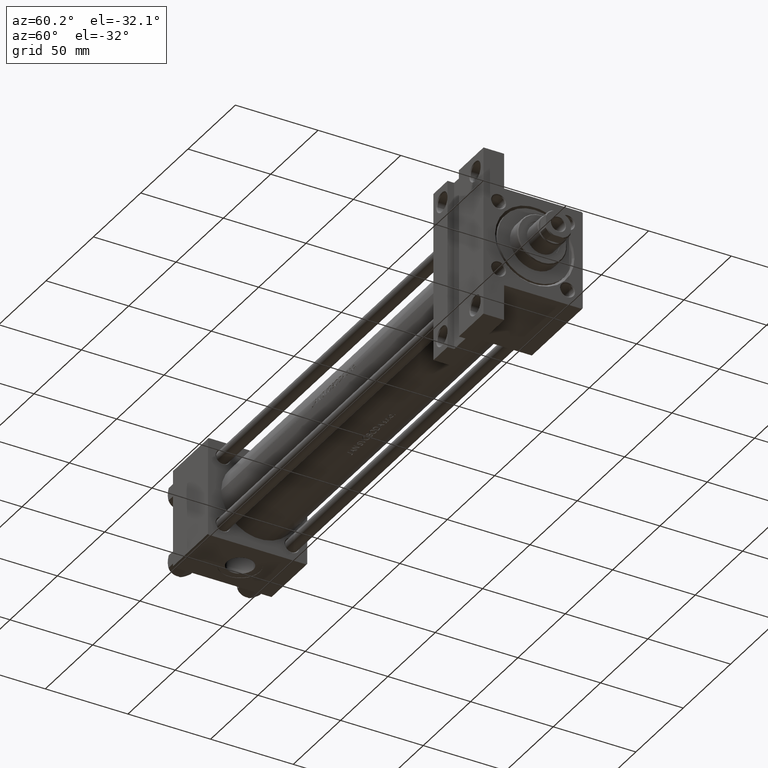
[diagram: clean part render]
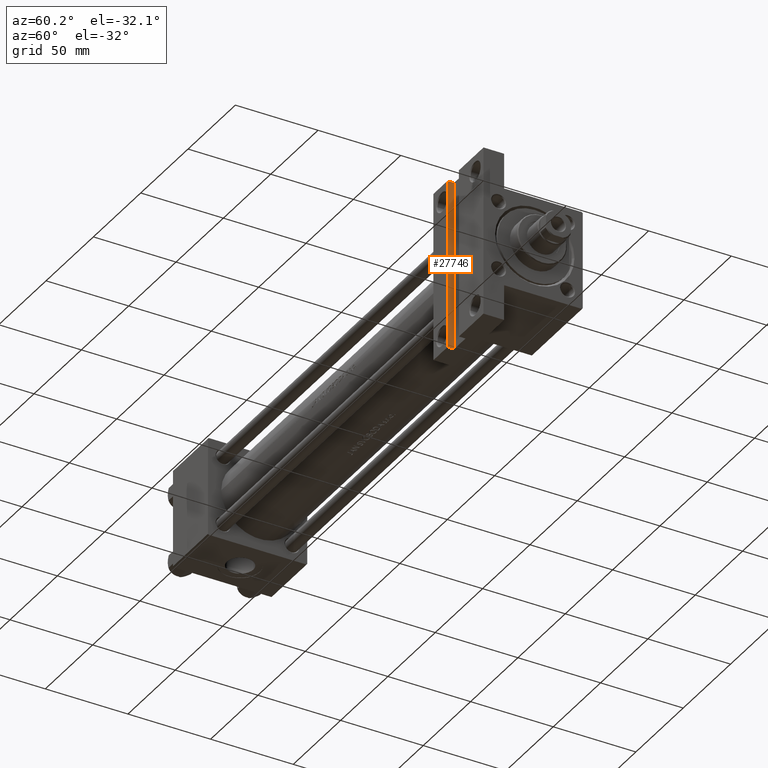
[diagram: same view with one face highlighted and labeled with its STEP entity id]
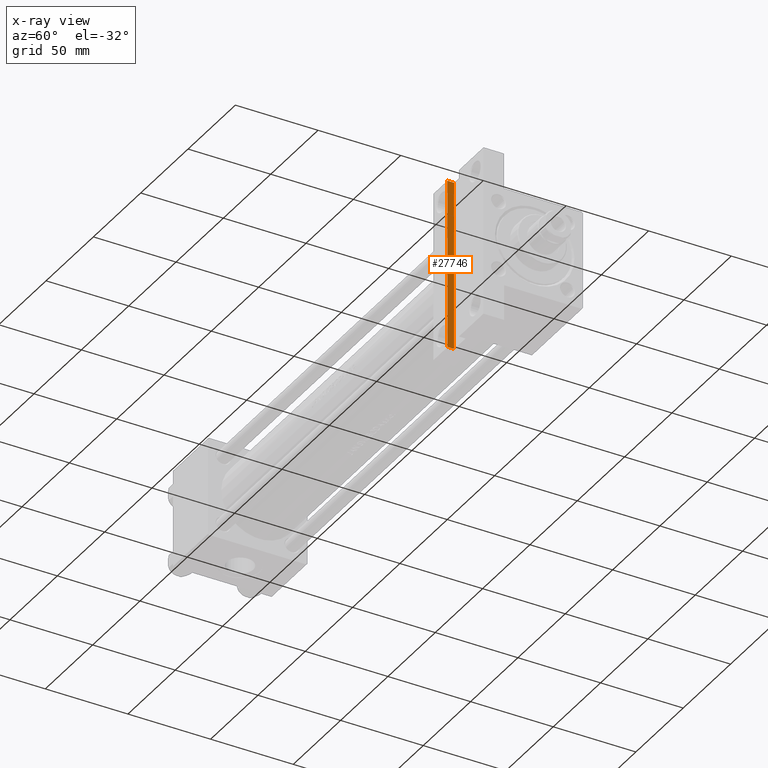
[diagram: x-ray of the same camera — body ghosted, the highlighted face saturated]
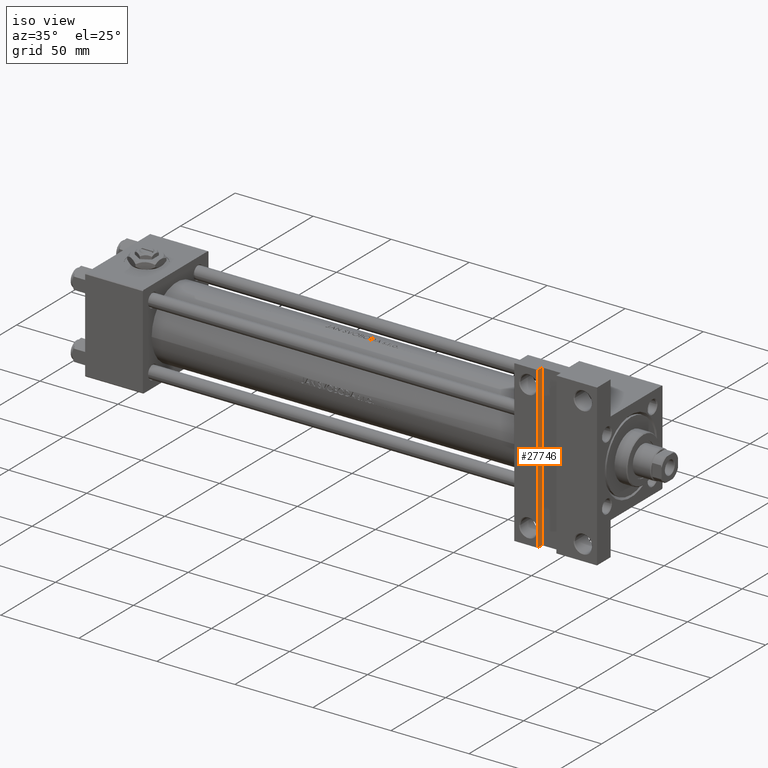
[diagram: same view with one face highlighted and labeled with its STEP entity id]
A machine part, auxiliary view. The second image highlights one B-rep face of the part: STEP entity #27746.
The next image is the same camera in x-ray: the body ghosted, the highlighted face saturated — about 0% of this face is hidden behind the body in this view.
A second angle (iso view) of the same face is appended — the face is thin or edge-on in the first view.
In plain terms, the highlighted planar face has unit normal (-1, 0, 0).
Its self-contained STEP definition (entity closure, byte-faithful):
#575 = CARTESIAN_POINT ( 'NONE',  ( 289.9999999999999432, -51.49999999999995026, -29.99999999999999645 ) ) ;
#1737 = VERTEX_POINT ( 'NONE', #7798 ) ;
#3261 = EDGE_CURVE ( 'NONE', #45920, #22459, #19750, .T. ) ;
#6131 = ORIENTED_EDGE ( 'NONE', *, *, #23345, .F. ) ;
#7798 = CARTESIAN_POINT ( 'NONE',  ( 289.9999999999999432, -51.49999999999995026, -25.99999999999999645 ) ) ;
#11271 = CARTESIAN_POINT ( 'NONE',  ( 289.9999999999999432, -51.49999999999995026, -25.99999999999999645 ) ) ;
#12279 = ORIENTED_EDGE ( 'NONE', *, *, #40052, .F. ) ;
#15781 = ORIENTED_EDGE ( 'NONE', *, *, #42125, .T. ) ;
#15880 = CARTESIAN_POINT ( 'NONE',  ( 289.9999999999999432, -51.49999999999995026, -25.99999999999999645 ) ) ;
#16116 = DIRECTION ( 'NONE',  ( 0.000000000000000000, 1.000000000000000000, 0.000000000000000000 ) ) ;
#17472 = VECTOR ( 'NONE', #47199, 1000.000000000000000 ) ;
#18736 = DIRECTION ( 'NONE',  ( -0.000000000000000000, -0.000000000000000000, -1.000000000000000000 ) ) ;
#19750 = LINE ( 'NONE', #24110, #39876 ) ;
#20261 = LINE ( 'NONE', #15880, #17472 ) ;
#21801 = DIRECTION ( 'NONE',  ( -1.000000000000000000, 0.000000000000000000, 0.000000000000000000 ) ) ;
#22459 = VERTEX_POINT ( 'NONE', #38478 ) ;
#23345 = EDGE_CURVE ( 'NONE', #43914, #22459, #35751, .T. ) ;
#24110 = CARTESIAN_POINT ( 'NONE',  ( 289.9999999999999432, -51.49999999999995026, -29.99999999999999645 ) ) ;
#24268 = ORIENTED_EDGE ( 'NONE', *, *, #3261, .T. ) ;
#27746 = ADVANCED_FACE ( 'NONE', ( #40794 ), #37442, .F. ) ;
#31636 = DIRECTION ( 'NONE',  ( -0.000000000000000000, -0.000000000000000000, -1.000000000000000000 ) ) ;
#35232 = CARTESIAN_POINT ( 'NONE',  ( 289.9999999999999432, 51.49999999999996447, -25.99999999999999645 ) ) ;
#35751 = LINE ( 'NONE', #36765, #50797 ) ;
#36049 = AXIS2_PLACEMENT_3D ( 'NONE', #41295, #21801, #36680 ) ;
#36680 = DIRECTION ( 'NONE',  ( 0.000000000000000000, 0.000000000000000000, 1.000000000000000000 ) ) ;
#36765 = CARTESIAN_POINT ( 'NONE',  ( 289.9999999999999432, 51.49999999999996447, -25.99999999999999645 ) ) ;
#36990 = EDGE_LOOP ( 'NONE', ( #24268, #6131, #12279, #15781 ) ) ;
#37442 = PLANE ( 'NONE',  #36049 ) ;
#38478 = CARTESIAN_POINT ( 'NONE',  ( 289.9999999999999432, 51.49999999999996447, -29.99999999999999645 ) ) ;
#39876 = VECTOR ( 'NONE', #16116, 1000.000000000000000 ) ;
#40052 = EDGE_CURVE ( 'NONE', #1737, #43914, #20261, .T. ) ;
#40794 = FACE_OUTER_BOUND ( 'NONE', #36990, .T. ) ;
#41295 = CARTESIAN_POINT ( 'NONE',  ( 289.9999999999999432, -51.49999999999995026, -25.99999999999999645 ) ) ;
#42125 = EDGE_CURVE ( 'NONE', #1737, #45920, #47179, .T. ) ;
#43914 = VERTEX_POINT ( 'NONE', #35232 ) ;
#45920 = VERTEX_POINT ( 'NONE', #575 ) ;
#47068 = VECTOR ( 'NONE', #18736, 1000.000000000000000 ) ;
#47179 = LINE ( 'NONE', #11271, #47068 ) ;
#47199 = DIRECTION ( 'NONE',  ( 0.000000000000000000, 1.000000000000000000, 0.000000000000000000 ) ) ;
#50797 = VECTOR ( 'NONE', #31636, 1000.000000000000000 ) ;